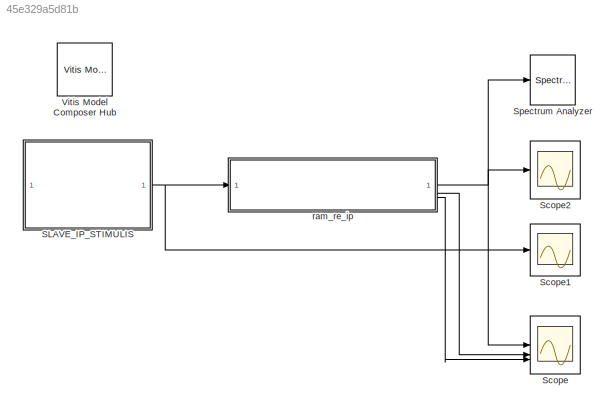
MODEL slx_45e329a5d81b
KIND model
CONFIG AbsTol = auto
CONFIG EnableMultiTasking = off
CONFIG FixedStep = auto
CONFIG MaxStep = auto
CONFIG MinStep = auto
CONFIG RelTol = 1e-3
CONFIG SampleTimeConstraint = Unconstrained
CONFIG SolverName = VariableStepAuto
CONFIG StartTime = 0.0
CONFIG StopTime = 10000/fs
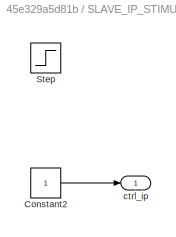
BLOCK [SubSystem] SLAVE_IP_STIMULIS
BLOCK [Constant] SLAVE_IP_STIMULIS/Constant2
BLOCK [Step] SLAVE_IP_STIMULIS/Step
  After = 0
  Before = 1
  SampleTime = 1/fs
  Time = 2/fs
BLOCK [Outport] SLAVE_IP_STIMULIS/ctrl_ip
  VectorParamsAs1DForOutWhenUnconnected = off
BLOCK [Scope] Scope
  Floating = off
  NumInputPorts = 3
  ScopeSpecificationString = Simulink.scopes.TimeScopeBlockCfg('CurrentConfiguration', extmgr.ConfigurationSet(extmgr.Configuration('Core','General UI',true),extmgr.Configuration('Core','Source UI',true),extmgr.Configuration('Sources','WiredSimulink',true,'DataLoggingVariableName','ScopeData1'),extmgr.Configuration('Visuals','Time Domain',true,'SerializedDisplays',{struct('MinYLimReal','-1.24114','MaxYLimReal','1.24898','YLab...<+5149ch>
BLOCK [Scope] Scope1
  Floating = off
  NumInputPorts = 1
  ScopeSpecificationString = Simulink.scopes.TimeScopeBlockCfg('CurrentConfiguration', extmgr.ConfigurationSet(extmgr.Configuration('Core','General UI',true),extmgr.Configuration('Core','Source UI',true),extmgr.Configuration('Sources','WiredSimulink',true,'DataLoggingVariableName','ScopeData1'),extmgr.Configuration('Visuals','Time Domain',true,'SerializedDisplays',{struct('MinYLimReal','0.9','MaxYLimReal','1.1','YLabelReal','...<+2281ch>
BLOCK [Scope] Scope2
  Floating = off
  NumInputPorts = 1
  ScopeSpecificationString = Simulink.scopes.TimeScopeBlockCfg('CurrentConfiguration', extmgr.ConfigurationSet(extmgr.Configuration('Core','General UI',true),extmgr.Configuration('Core','Source UI',true),extmgr.Configuration('Sources','WiredSimulink',true,'DataLoggingVariableName','ScopeData2'),extmgr.Configuration('Visuals','Time Domain',true,'SerializedDisplays',{struct('MinYLimReal','-1.24904','MaxYLimReal','1.24379','YLab...<+2305ch>
BLOCK [SpectrumAnalyzer] Spectrum Analyzer
  ExpandToolstrip = on
  GraphicalSettings = {"GraphicalSettings":{"Style":{"BackgroundColor":[0.12941176470588237,0.12941176470588237,0.12941176470588237],"AxesColor":[0.07058823529411765,0.07058823529411765,0.07058823529411765],"LabelsColor":[0.8509803921568627,0.8509803921568627,0.8509803921568627],"PreserveColors":false,"Visible":[true],"LineStyle":["-"],"LineColor":[[1,1,0.06666666666666667]],"LineWidth":[1.5],"Marker":["none"],"FontSiz...<+957ch>
  ScopeFrameLocation = window
  SelectedToolstripTab = spectrumAnalyzerToolstrip.measurementsTab
  Span = 300000000
  StartFrequency = -150000000
  StopFrequency = 150000000
  Visible = on
  WasSavedAsWebScope = on
  WindowPosition = [310.000000,85.000000,800.000000,500.000000,]
  YLimits = [-53.13063472,27.60600123]
BLOCK [Reference] Vitis Model Composer Hub  REF=vmcUtilities/Vitis Model Composer Hub
  SourceBlock = vmcUtilities/Vitis Model Composer Hub
  SourceType = VMC Hub
  Tag = genX
  UserDataPersistent = on
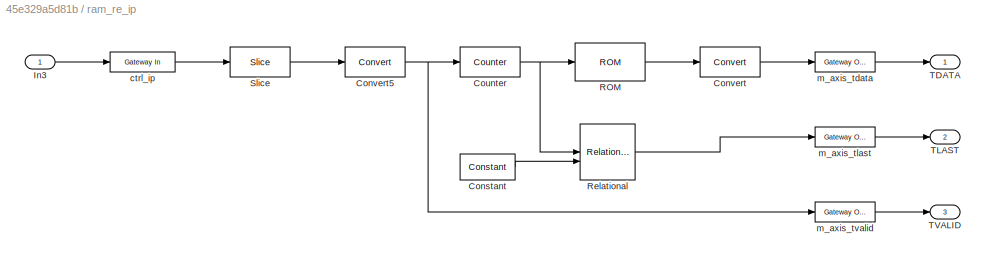
BLOCK [SubSystem] ram_re_ip
BLOCK [Reference] ram_re_ip/Constant  REF=hdlBasic/Constant
  SourceBlock = hdlBasic/Constant
  SourceType = Constant Block Block
BLOCK [Reference] ram_re_ip/Convert  REF=hdlBasic/Convert
  SourceBlock = hdlBasic/Convert
  SourceType = Type Converter Block
BLOCK [Reference] ram_re_ip/Convert5  REF=hdlBasic/Convert
  SourceBlock = hdlBasic/Convert
  SourceType = Type Converter Block
BLOCK [Reference] ram_re_ip/Counter  REF=hdlBasic/Counter
  SourceBlock = hdlBasic/Counter
  SourceType = Counter Block
BLOCK [Inport] ram_re_ip/In3
BLOCK [Reference] ram_re_ip/ROM  REF=hdlBasic/ROM
  SourceBlock = hdlBasic/ROM
  SourceType = Single Port Read-Only Memory Block
BLOCK [Reference] ram_re_ip/Relational  REF=hdlBasic/Relational
  SourceBlock = hdlBasic/Relational
  SourceType = Arithmetic Relational Operator Block
BLOCK [Reference] ram_re_ip/Slice  REF=hdlBasic/Slice
  SourceBlock = hdlBasic/Slice
  SourceType = Bit Slice Extractor Block
BLOCK [Outport] ram_re_ip/TDATA
BLOCK [Outport] ram_re_ip/TLAST
  Port = 2
BLOCK [Outport] ram_re_ip/TVALID
  Port = 3
BLOCK [Reference] ram_re_ip/ctrl_ip  REF=hdlBasic/Gateway In
  SourceBlock = hdlBasic/Gateway In
  SourceType = Gateway In Block
BLOCK [Reference] ram_re_ip/m_axis_tdata  REF=hdlBasic/Gateway Out
  SourceBlock = hdlBasic/Gateway Out
  SourceType = Gateway Out Block
BLOCK [Reference] ram_re_ip/m_axis_tlast  REF=hdlBasic/Gateway Out
  SourceBlock = hdlBasic/Gateway Out
  SourceType = Gateway Out Block
BLOCK [Reference] ram_re_ip/m_axis_tvalid  REF=hdlBasic/Gateway Out
  SourceBlock = hdlBasic/Gateway Out
  SourceType = Gateway Out Block
LINE SLAVE_IP_STIMULIS/Constant2:1 -> SLAVE_IP_STIMULIS/ctrl_ip:1
NET SLAVE_IP_STIMULIS:1 -> Scope1:1, ram_re_ip:1
LINE ram_re_ip/Constant:1 -> ram_re_ip/Relational:2
NET ram_re_ip/Convert5:1 -> ram_re_ip/Counter:1, ram_re_ip/m_axis_tvalid:1
LINE ram_re_ip/Convert:1 -> ram_re_ip/m_axis_tdata:1
NET ram_re_ip/Counter:1 -> ram_re_ip/ROM:1, ram_re_ip/Relational:1
LINE ram_re_ip/In3:1 -> ram_re_ip/ctrl_ip:1
LINE ram_re_ip/ROM:1 -> ram_re_ip/Convert:1
LINE ram_re_ip/Relational:1 -> ram_re_ip/m_axis_tlast:1
LINE ram_re_ip/Slice:1 -> ram_re_ip/Convert5:1
LINE ram_re_ip/ctrl_ip:1 -> ram_re_ip/Slice:1
LINE ram_re_ip/m_axis_tdata:1 -> ram_re_ip/TDATA:1
LINE ram_re_ip/m_axis_tlast:1 -> ram_re_ip/TLAST:1
LINE ram_re_ip/m_axis_tvalid:1 -> ram_re_ip/TVALID:1
NET ram_re_ip:1 -> Scope2:1, Scope:1, Spectrum Analyzer:1
LINE ram_re_ip:2 -> Scope:2
LINE ram_re_ip:3 -> Scope:3
note: NET lines group one-source signal fan-out (src -> all destinations, sorted); 1:1 wires keep LINE
